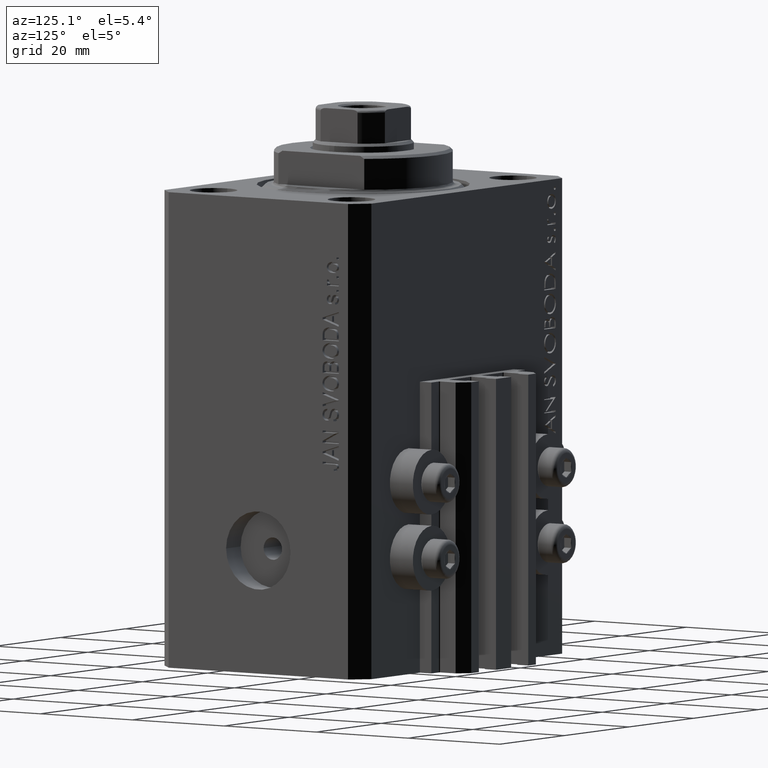
[diagram: clean part render]
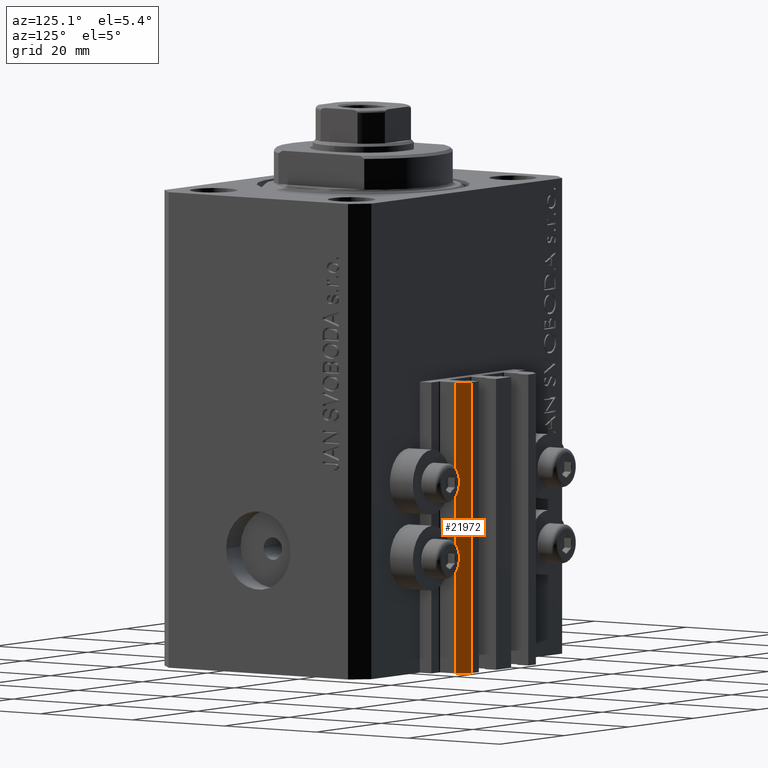
[diagram: same view with one face highlighted and labeled with its STEP entity id]
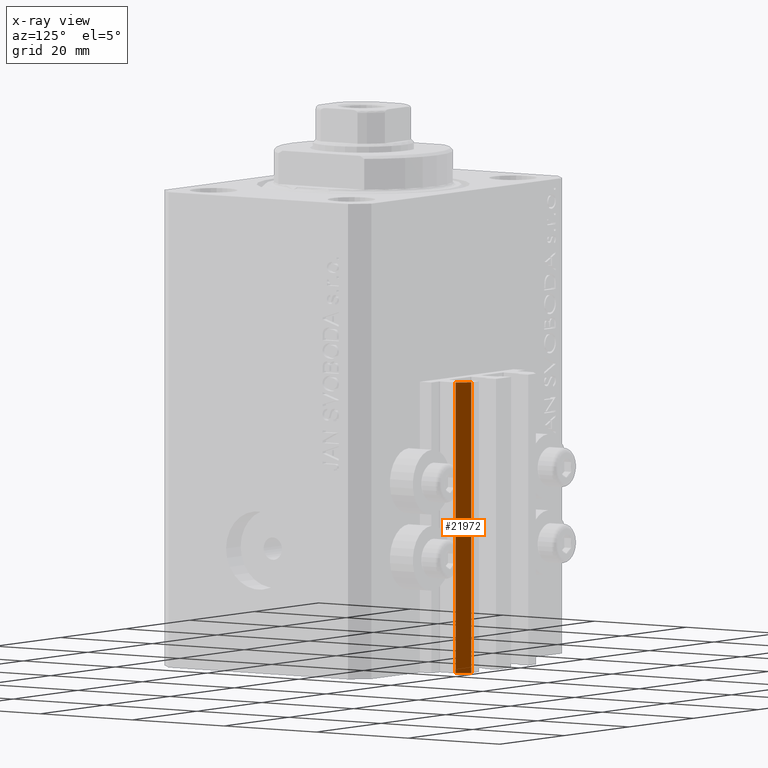
[diagram: x-ray of the same camera — body ghosted, the highlighted face saturated]
A machine part, auxiliary view. The second image highlights one B-rep face of the part: STEP entity #21972.
The next image is the same camera in x-ray: the body ghosted, the highlighted face saturated — about 0% of this face is hidden behind the body in this view.
In plain terms, the highlighted planar face has unit normal (0.7071, 0.7071, 0).
Its self-contained STEP definition (entity closure, byte-faithful):
#159 = DIRECTION ( 'NONE',  ( 0.7071067811865441310, 0.7071067811865509034, -0.000000000000000000 ) ) ;
#1532 = ORIENTED_EDGE ( 'NONE', *, *, #4649, .F. ) ;
#1731 = LINE ( 'NONE', #16389, #31039 ) ;
#2333 = EDGE_CURVE ( 'NONE', #21587, #18902, #35181, .T. ) ;
#4036 = CARTESIAN_POINT ( 'NONE',  ( 9.999999999999994671, 30.49999999999949551, -33.00000000000000000 ) ) ;
#4649 = EDGE_CURVE ( 'NONE', #39955, #37319, #1731, .T. ) ;
#8802 = CARTESIAN_POINT ( 'NONE',  ( 9.999999999999994671, 30.49999999999949551, -85.00000000000000000 ) ) ;
#9953 = AXIS2_PLACEMENT_3D ( 'NONE', #43848, #159, #44088 ) ;
#13350 = DIRECTION ( 'NONE',  ( 0.000000000000000000, 0.000000000000000000, 1.000000000000000000 ) ) ;
#14451 = DIRECTION ( 'NONE',  ( -0.7071067811865507924, 0.7071067811865441310, 0.000000000000000000 ) ) ;
#14922 = CARTESIAN_POINT ( 'NONE',  ( 12.00000000000000178, 28.49999999999950973, -85.00000000000000000 ) ) ;
#15443 = CARTESIAN_POINT ( 'NONE',  ( 12.00000000000000178, 28.49999999999950973, -33.00000000000000000 ) ) ;
#16389 = CARTESIAN_POINT ( 'NONE',  ( 12.00000000000000178, 28.49999999999950973, -85.00000000000000000 ) ) ;
#18066 = LINE ( 'NONE', #14922, #28850 ) ;
#18902 = VERTEX_POINT ( 'NONE', #4036 ) ;
#19576 = EDGE_CURVE ( 'NONE', #37319, #18902, #33664, .T. ) ;
#21587 = VERTEX_POINT ( 'NONE', #42318 ) ;
#21793 = FACE_OUTER_BOUND ( 'NONE', #43185, .T. ) ;
#21972 = ADVANCED_FACE ( 'NONE', ( #21793 ), #36407, .T. ) ;
#24806 = CARTESIAN_POINT ( 'NONE',  ( 12.00000000000000178, 28.49999999999950973, -33.00000000000000000 ) ) ;
#28175 = CARTESIAN_POINT ( 'NONE',  ( 12.00000000000000178, 28.49999999999950973, -85.00000000000000000 ) ) ;
#28850 = VECTOR ( 'NONE', #14451, 1000.000000000000000 ) ;
#29908 = VECTOR ( 'NONE', #44711, 1000.000000000000000 ) ;
#31019 = DIRECTION ( 'NONE',  ( 0.000000000000000000, 0.000000000000000000, 1.000000000000000000 ) ) ;
#31039 = VECTOR ( 'NONE', #31019, 1000.000000000000000 ) ;
#33664 = LINE ( 'NONE', #15443, #29908 ) ;
#34738 = ORIENTED_EDGE ( 'NONE', *, *, #42644, .T. ) ;
#35181 = LINE ( 'NONE', #8802, #47021 ) ;
#35313 = ORIENTED_EDGE ( 'NONE', *, *, #19576, .F. ) ;
#36407 = PLANE ( 'NONE',  #9953 ) ;
#37319 = VERTEX_POINT ( 'NONE', #24806 ) ;
#39955 = VERTEX_POINT ( 'NONE', #28175 ) ;
#42318 = CARTESIAN_POINT ( 'NONE',  ( 9.999999999999994671, 30.49999999999949551, -85.00000000000000000 ) ) ;
#42644 = EDGE_CURVE ( 'NONE', #39955, #21587, #18066, .T. ) ;
#43185 = EDGE_LOOP ( 'NONE', ( #35313, #1532, #34738, #46119 ) ) ;
#43848 = CARTESIAN_POINT ( 'NONE',  ( 12.00000000000000178, 28.49999999999950973, -85.00000000000000000 ) ) ;
#44088 = DIRECTION ( 'NONE',  ( -0.7071067811865509034, 0.7071067811865441310, 0.000000000000000000 ) ) ;
#44711 = DIRECTION ( 'NONE',  ( -0.7071067811865507924, 0.7071067811865441310, 0.000000000000000000 ) ) ;
#46119 = ORIENTED_EDGE ( 'NONE', *, *, #2333, .T. ) ;
#47021 = VECTOR ( 'NONE', #13350, 1000.000000000000000 ) ;